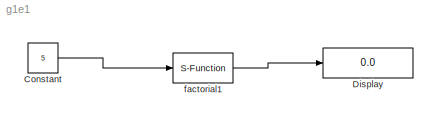
MODEL g1e1
KIND model
BLOCK [Constant] Constant
  OutDataType = sfix(16)
  OutScaling = 2^0
  Value = 5
BLOCK [Display] Display
  Decimation = 1
  Lockdown = off
  Ports = [1]
BLOCK [S-Function] factorial1
  FunctionName = factorial_
  Ports = [1, 1]
LINE Constant:1 -> factorial1:1
LINE factorial1:1 -> Display:1
